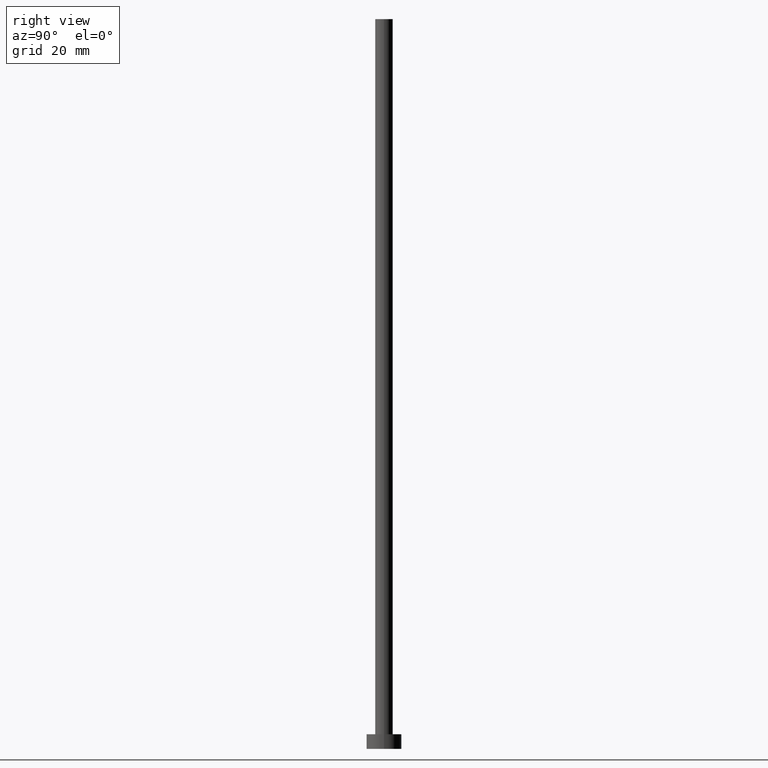
[diagram: clean part render]
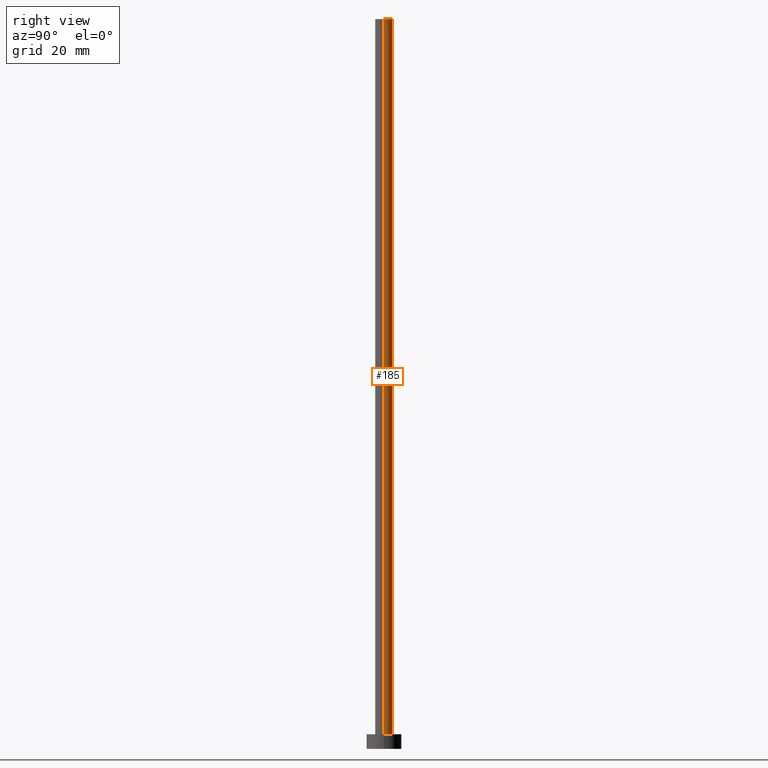
[diagram: same view with one face highlighted and labeled with its STEP entity id]
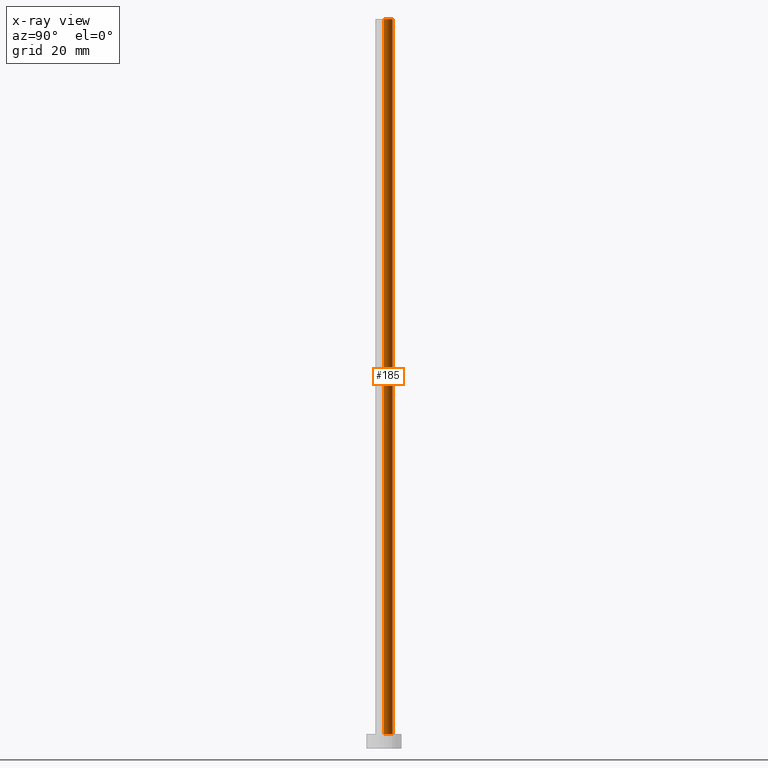
[diagram: x-ray of the same camera — body ghosted, the highlighted face saturated]
A machine part, right view. The second image highlights one B-rep face of the part: STEP entity #185.
The next image is the same camera in x-ray: the body ghosted, the highlighted face saturated — about 0% of this face is hidden behind the body in this view.
In plain terms, the highlighted cylindrical surface (edge-blend (fillet) strip) has radius 3 mm, axis along (-0, -0, -1).
Its self-contained STEP definition (entity closure, byte-faithful):
#12 = DIRECTION ( 'NONE',  ( -0.000000000000000000, -0.000000000000000000, -1.000000000000000000 ) ) ;
#21 = DIRECTION ( 'NONE',  ( 1.000000000000000000, 0.000000000000000000, 0.000000000000000000 ) ) ;
#34 = CARTESIAN_POINT ( 'NONE',  ( 3.000000000000000444, 3.673940397442060361E-16, 250.0000000000000000 ) ) ;
#46 = CARTESIAN_POINT ( 'NONE',  ( 3.000000000000000444, 3.673940397442060361E-16, 5.000000000000000000 ) ) ;
#54 = DIRECTION ( 'NONE',  ( 0.000000000000000000, 0.000000000000000000, 1.000000000000000000 ) ) ;
#64 = ORIENTED_EDGE ( 'NONE', *, *, #78, .F. ) ;
#72 = DIRECTION ( 'NONE',  ( -1.000000000000000000, 0.000000000000000000, 0.000000000000000000 ) ) ;
#75 = CARTESIAN_POINT ( 'NONE',  ( -3.000000000000000444, 0.000000000000000000, 5.000000000000000000 ) ) ;
#77 = CIRCLE ( 'NONE', #132, 3.000000000000000444 ) ;
#78 = EDGE_CURVE ( 'NONE', #85, #141, #77, .T. ) ;
#85 = VERTEX_POINT ( 'NONE', #131 ) ;
#106 = CYLINDRICAL_SURFACE ( 'NONE', #179, 3.000000000000000444 ) ;
#122 = ORIENTED_EDGE ( 'NONE', *, *, #145, .T. ) ;
#124 = VERTEX_POINT ( 'NONE', #75 ) ;
#125 = CARTESIAN_POINT ( 'NONE',  ( 0.000000000000000000, 0.000000000000000000, 250.0000000000000000 ) ) ;
#131 = CARTESIAN_POINT ( 'NONE',  ( 3.000000000000000444, 3.673940397442060361E-16, 250.0000000000000000 ) ) ;
#132 = AXIS2_PLACEMENT_3D ( 'NONE', #154, #54, #236 ) ;
#139 = DIRECTION ( 'NONE',  ( -0.000000000000000000, -0.000000000000000000, -1.000000000000000000 ) ) ;
#141 = VERTEX_POINT ( 'NONE', #200 ) ;
#142 = CIRCLE ( 'NONE', #177, 3.000000000000000444 ) ;
#145 = EDGE_CURVE ( 'NONE', #85, #164, #241, .T. ) ;
#146 = CARTESIAN_POINT ( 'NONE',  ( 0.000000000000000000, 0.000000000000000000, 5.000000000000000000 ) ) ;
#147 = EDGE_LOOP ( 'NONE', ( #64, #122, #222, #243 ) ) ;
#149 = CARTESIAN_POINT ( 'NONE',  ( -3.000000000000000444, 0.000000000000000000, 250.0000000000000000 ) ) ;
#154 = CARTESIAN_POINT ( 'NONE',  ( 0.000000000000000000, 0.000000000000000000, 250.0000000000000000 ) ) ;
#164 = VERTEX_POINT ( 'NONE', #46 ) ;
#167 = VECTOR ( 'NONE', #139, 1000.000000000000000 ) ;
#173 = EDGE_CURVE ( 'NONE', #141, #124, #202, .T. ) ;
#177 = AXIS2_PLACEMENT_3D ( 'NONE', #146, #208, #21 ) ;
#179 = AXIS2_PLACEMENT_3D ( 'NONE', #125, #207, #72 ) ;
#185 = ADVANCED_FACE ( 'NONE', ( #233 ), #106, .T. ) ;
#200 = CARTESIAN_POINT ( 'NONE',  ( -3.000000000000000444, 0.000000000000000000, 250.0000000000000000 ) ) ;
#202 = LINE ( 'NONE', #149, #209 ) ;
#207 = DIRECTION ( 'NONE',  ( -0.000000000000000000, -0.000000000000000000, -1.000000000000000000 ) ) ;
#208 = DIRECTION ( 'NONE',  ( 0.000000000000000000, 0.000000000000000000, 1.000000000000000000 ) ) ;
#209 = VECTOR ( 'NONE', #12, 1000.000000000000000 ) ;
#222 = ORIENTED_EDGE ( 'NONE', *, *, #253, .T. ) ;
#233 = FACE_OUTER_BOUND ( 'NONE', #147, .T. ) ;
#236 = DIRECTION ( 'NONE',  ( 1.000000000000000000, 0.000000000000000000, 0.000000000000000000 ) ) ;
#241 = LINE ( 'NONE', #34, #167 ) ;
#243 = ORIENTED_EDGE ( 'NONE', *, *, #173, .F. ) ;
#253 = EDGE_CURVE ( 'NONE', #164, #124, #142, .T. ) ;